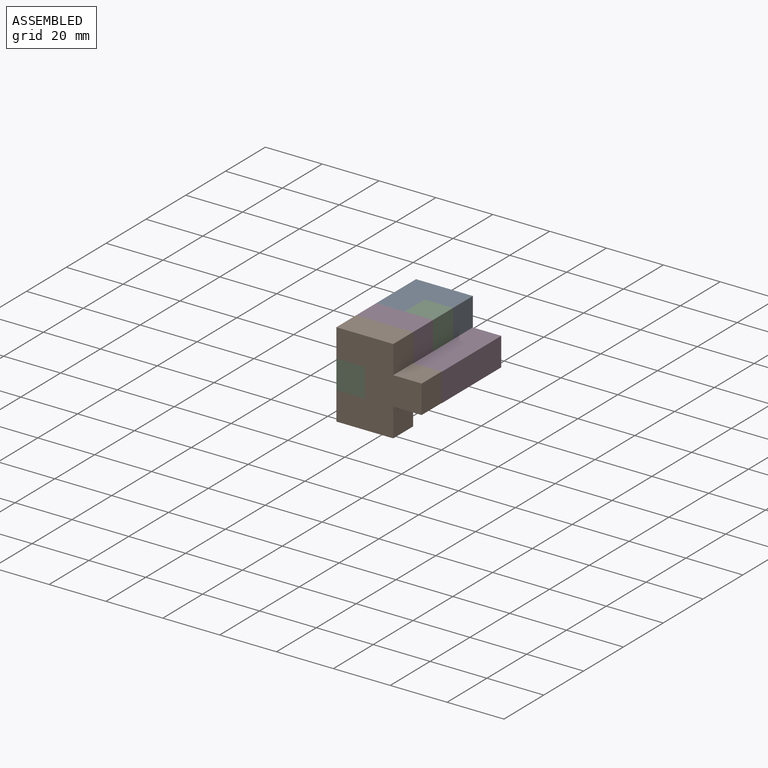
[diagram: assembled view]
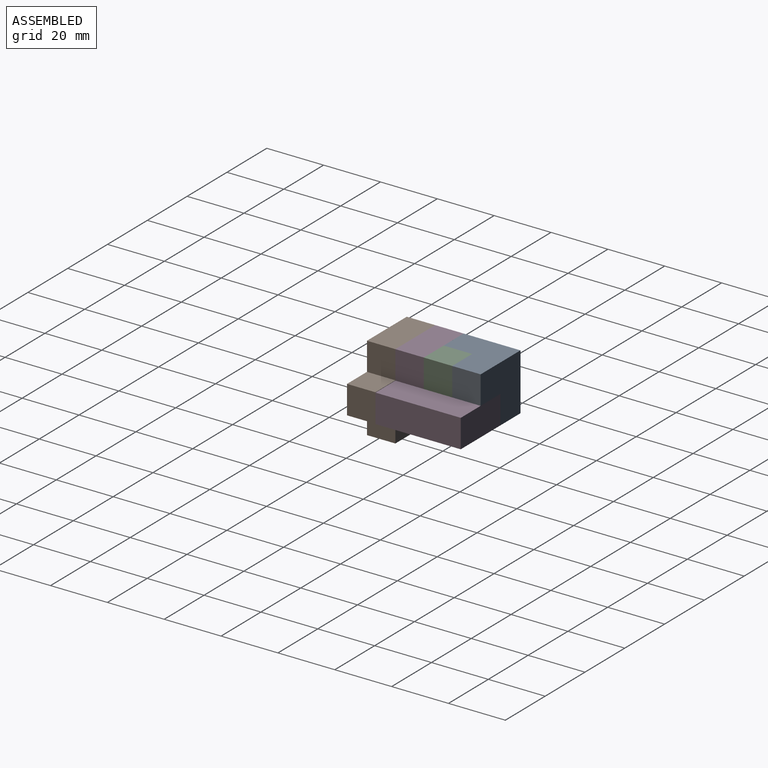
[diagram: assembled view, second angle]
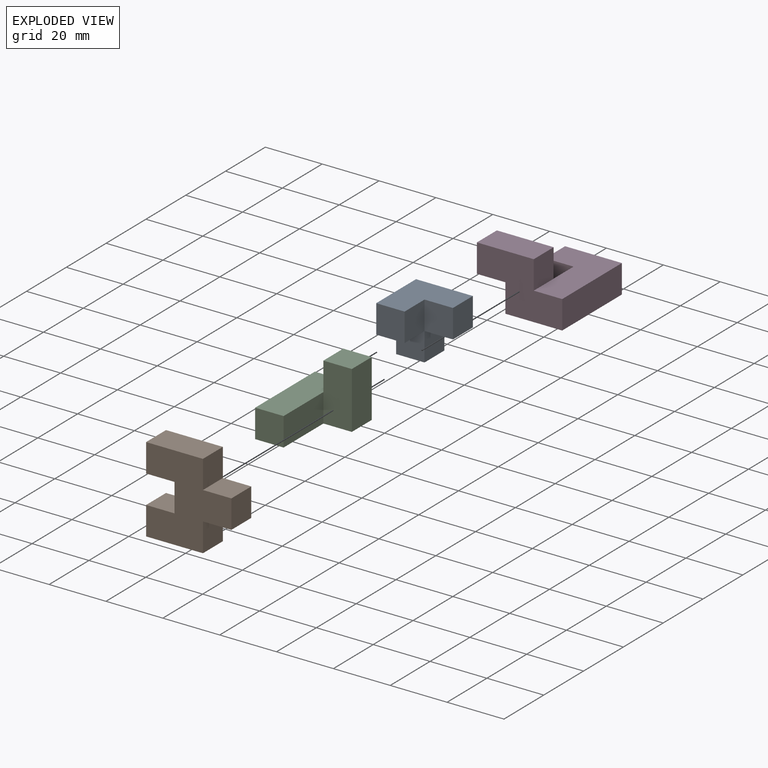
[diagram: exploded view]
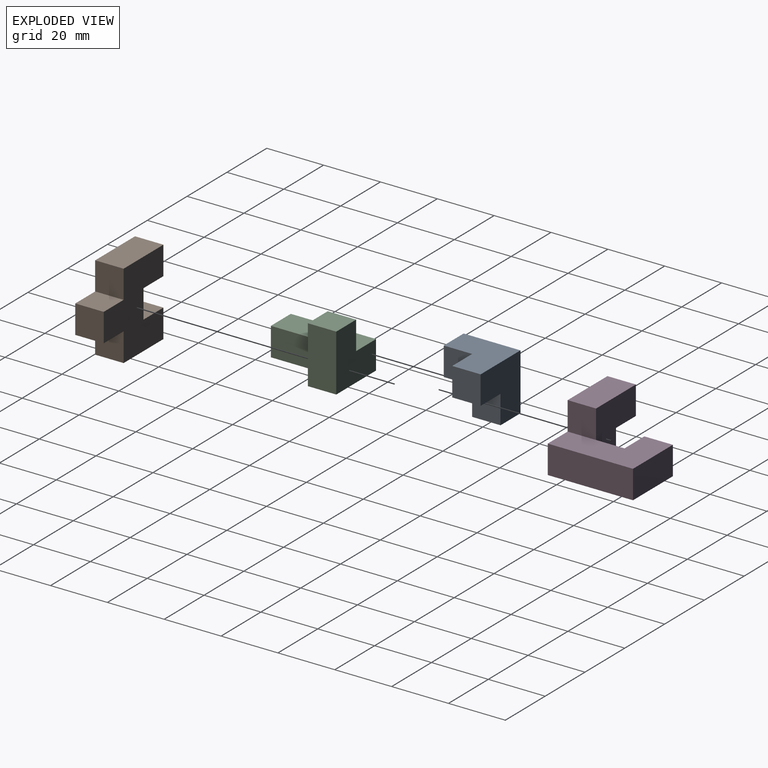
[diagram: exploded view, second angle]
ASSEMBLY  parts=4 mates=3
PART A: 12 faces, bbox 20x20x20 mm
  f0: plane 10x10mm, normal (0,0,-1), area 100mm2, adj f6,f7,f8,f9
  f1: plane 20x20mm, normal (0,0,1), area 300mm2, adj f2,f4,f5,f6,f7,f8
  f2: plane 20x20mm, normal (-1,0,0), area 300mm2, adj f1,f3,f5,f6,f10,f11
  f3: plane 10x10mm, normal (0,0,-1), area 100mm2, adj f2,f4,f5,f10
  f4: plane 10x10mm, normal (1,0,0), area 100mm2, adj f1,f3,f5,f7
  f5: plane 10x10mm, normal (0,-1,0), area 100mm2, adj f1,f2,f3,f4
  f6: plane 20x20mm, normal (0,1,0), area 300mm2, adj f0,f1,f2,f8,f9,f11
  f7: plane 10x10mm, normal (0,-1,0), area 100mm2, adj f0,f1,f4,f8
  f8: plane 10x10mm, normal (1,0,0), area 100mm2, adj f0,f1,f6,f7
  f9: plane 10x10mm, normal (1,0,0), area 100mm2, adj f0,f6,f10,f11
  f10: plane 10x10mm, normal (0,-1,0), area 100mm2, adj f2,f3,f9,f11
  f11: plane 10x10mm, normal (0,0,-1), area 100mm2, adj f2,f6,f9,f10
PART B: 14 faces, bbox 30x10x30 mm
  f0: plane 10.1x10mm, normal (1,0,0), area 101mm2, adj f3,f5,f8,f11
  f1: plane 10x9.9mm, normal (1,0,0), area 99mm2, adj f3,f4,f5,f12
  f2: plane 10x10mm, normal (-1,0,0), area 100mm2, adj f3,f5,f6,f9
  f3: plane 30x30mm, normal (0,1,0), area 600mm2, adj f0,f1,f2,f4,f6,f7,f8,f9
  f4: plane 20x10mm, normal (0,0,1), area 200mm2, adj f1,f3,f5,f7
  f5: plane 30x30mm, normal (0,-1,0), area 600mm2, adj f0,f1,f2,f4,f6,f7,f8,f9
  f6: plane 10x10mm, normal (0,0,-1), area 100mm2, adj f2,f3,f5,f7
  f7: plane 10x10mm, normal (-1,0,0), area 100mm2, adj f3,f4,f5,f6
  f8: plane 20x10mm, normal (0,0,-1), area 200mm2, adj f0,f3,f5,f10
  f9: plane 10x10mm, normal (0,0,1), area 100mm2, adj f2,f3,f5,f10
  f10: plane 10x10mm, normal (-1,0,0), area 100mm2, adj f3,f5,f8,f9
  f11: plane 10x10mm, normal (0,0,-1), area 100mm2, adj f0,f3,f5,f13
  f12: plane 10x10mm, normal (0,0,1), area 100mm2, adj f1,f3,f5,f13
  f13: plane 10x10mm, normal (1,0,0), area 100mm2, adj f3,f5,f11,f12
PART C: 57 faces, bbox 20x30x20 mm
  f0: plane 30x10mm, normal (-1,0,0), area 273.3mm2, adj f5,f6,f7,f9,f14,f15,f16,f17
  f1: plane 20x10mm, normal (0,-1,0), area 200mm2, adj f2,f3,f4,f6,f8
  f2: plane 10x10mm, normal (-1,0,0), area 100mm2, adj f1,f3,f5,f7
  f3: plane 10x10mm, normal (0,0,1), area 100mm2, adj f1,f2,f4,f5
  f4: plane 20x10mm, normal (1,0,0), area 200mm2, adj f1,f3,f5,f6
  f5: plane 20x20mm, normal (0,1,0), area 300mm2, adj f0,f2,f3,f4,f6,f7
  f6: plane 30x20mm, normal (0,0,-1), area 400mm2, adj f0,f1,f4,f5,f8,f9
  f7: plane 30x10mm, normal (0,0,1), area 300mm2, adj f0,f2,f5,f8,f9
  f8: plane 20x10mm, normal (1,0,0), area 200mm2, adj f1,f6,f7,f9
  f9: plane 10x10mm, normal (0,-1,0), area 100mm2, adj f0,f6,f7,f8
  f10: plane 1.61x1mm, normal (0,-0.94,0.35), area 1.7mm2, adj f11,f22,f23,f56
  f11: plane 1.68x1mm, normal (0,0,-1), area 1.7mm2, adj f10,f12,f23,f56
  f12: plane 1.61x1mm, normal (0,0.94,0.35), area 1.7mm2, adj f11,f13,f23,f56
  f13: extruded ~1x0.75mm, area 0.8mm2, adj f12,f22,f23,f56
  f14: plane 1.65x1mm, normal (0,-0.93,0.36), area 1.8mm2, adj f0,f15,f21,f23
  f15: plane 1x0.63mm, normal (0,0,1), area 0.6mm2, adj f0,f14,f16,f23
  f16: plane 5.22x2.04mm, normal (0,0.93,-0.36), area 5.6mm2, adj f0,f15,f17,f23
  f17: plane 1x0.51mm, normal (0,0,-1), area 0.5mm2, adj f0,f16,f18,f23
  f18: plane 5.22x2.05mm, normal (0,-0.93,-0.37), area 5.6mm2, adj f0,f17,f19,f23
  f19: plane 1x0.61mm, normal (0,0,1), area 0.6mm2, adj f0,f18,f20,f23
  f20: plane 1.65x1mm, normal (0,0.93,0.36), area 1.8mm2, adj f0,f19,f21,f23
  f21: plane 2.08x1mm, normal (0,0,1), area 2.1mm2, adj f0,f14,f20,f23
  f22: extruded ~1x0.75mm, area 0.8mm2, adj f10,f13,f23,f56
  f23: plane 5.22x4.61mm, normal (-1,0,0), area 6.9mm2, adj f10,f11,f12,f13,f14,f15,f16,f17
  f24: plane 1x0.69mm, normal (0,0,1), area 0.7mm2, adj f0,f25,f35,f36
  f25: plane 2.74x1.73mm, normal (0,0.84,-0.54), area 3.2mm2, adj f0,f24,f26,f36
  f26: plane 2.46x1.61mm, normal (0,0.84,0.55), area 2.9mm2, adj f0,f25,f27,f36
  f27: plane 1x0.64mm, normal (0,0,-1), area 0.6mm2, adj f0,f26,f28,f36
  f28: plane 2.06x1.3mm, normal (0,-0.85,-0.53), area 2.4mm2, adj f0,f27,f29,f36
  f29: plane 2.06x1.29mm, normal (0,0.85,-0.53), area 2.4mm2, adj f0,f28,f30,f36
  f30: plane 1x0.67mm, normal (0,0,-1), area 0.7mm2, adj f0,f29,f31,f36
  f31: plane 2.48x1.61mm, normal (0,-0.84,0.54), area 3mm2, adj f0,f30,f32,f36
  f32: plane 2.72x1.73mm, normal (0,-0.84,-0.54), area 3.2mm2, adj f0,f31,f33,f36
  f33: plane 1x0.64mm, normal (0,0,1), area 0.6mm2, adj f0,f32,f34,f36
  f34: plane 2.28x1.42mm, normal (0,0.85,0.53), area 2.7mm2, adj f0,f33,f35,f36
  f35: plane 2.28x1.4mm, normal (0,-0.85,0.52), area 2.7mm2, adj f0,f24,f34,f36
  f36: plane 5.2x4.14mm, normal (-1,0,0), area 6.4mm2, adj f24,f25,f26,f27,f28,f29,f30,f31
  f37: plane 4.61x1.76mm, normal (0,-0.93,0.36), area 4.9mm2, adj f0,f38,f54,f55
  f38: plane 1x0.49mm, normal (0,0,1), area 0.5mm2, adj f0,f37,f39,f55
  f39: plane 4.6x1.78mm, normal (0,0.93,0.36), area 4.9mm2, adj f0,f38,f40,f55
  f40: plane 1x0.03mm, normal (0,0,1), area 0mm2, adj f0,f39,f41,f55
  f41: extruded ~1.25x1mm, area 1.3mm2, adj f0,f40,f42,f55
  f42: plane 3.35x1mm, normal (0,-1,0), area 3.3mm2, adj f0,f41,f43,f55
  f43: plane 1x0.6mm, normal (0,0,1), area 0.6mm2, adj f0,f42,f44,f55
  f44: plane 5.2x1mm, normal (0,1,0), area 5.2mm2, adj f0,f43,f45,f55
  f45: plane 1x0.9mm, normal (0,0,-1), area 0.9mm2, adj f0,f44,f46,f55
  f46: plane 4.29x1.66mm, normal (0,-0.93,-0.36), area 4.6mm2, adj f0,f45,f47,f55
  f47: plane 1x0.03mm, normal (0,0,-1), area 0mm2, adj f0,f46,f48,f55
  f48: plane 4.29x1.65mm, normal (0,0.93,-0.36), area 4.6mm2, adj f0,f47,f49,f55
  f49: plane 1x0.91mm, normal (0,0,-1), area 0.9mm2, adj f0,f48,f50,f55
  f50: plane 5.2x1mm, normal (0,-1,0), area 5.2mm2, adj f0,f49,f51,f55
  f51: plane 1x0.56mm, normal (0,0,1), area 0.6mm2, adj f0,f50,f52,f55
  f52: plane 3.3x1mm, normal (0,1,0), area 3.3mm2, adj f0,f51,f53,f55
  f53: extruded ~1.3x1mm, area 1.3mm2, adj f0,f52,f54,f55
  f54: plane 1x0.03mm, normal (0,0,1), area 0mm2, adj f0,f37,f53,f55
  f55: plane 5.2x5.15mm, normal (-1,0,0), area 11.5mm2, adj f37,f38,f39,f40,f41,f42,f43,f44
  f56: plane 2.36x1.68mm, normal (-1,0,0), area 1.9mm2, adj f10,f11,f12,f13,f22
PART D: 14 faces, bbox 30x30x20 mm
  f0: plane 30x20mm, normal (0,0,1), area 400mm2, adj f1,f2,f3,f5,f6,f7,f10
  f1: plane 10x10mm, normal (-1,0,0), area 100mm2, adj f0,f3,f4,f8
  f2: plane 20x10mm, normal (0,1,0), area 200mm2, adj f0,f4,f5,f6
  f3: plane 10x10mm, normal (0,-1,0), area 100mm2, adj f0,f1,f4,f6
  f4: plane 30x20mm, normal (0,0,-1), area 500mm2, adj f1,f2,f3,f5,f6,f7,f8,f9
  f5: plane 30x10mm, normal (1,0,0), area 300mm2, adj f0,f2,f4,f7
  f6: plane 10x10mm, normal (-1,0,0), area 100mm2, adj f0,f2,f3,f4
  f7: plane 30x20mm, normal (0,-1,0), area 400mm2, adj f0,f4,f5,f9,f10,f11,f12,f13
  f8: plane 20x20mm, normal (0,1,0), area 300mm2, adj f1,f4,f9,f10,f11,f12,f13
  f9: plane 10x10mm, normal (-1,0,0), area 100mm2, adj f4,f7,f8,f12
  f10: plane 10x10mm, normal (1,0,0), area 100mm2, adj f0,f7,f8,f11
  f11: plane 20x10mm, normal (0,0,1), area 200mm2, adj f7,f8,f10,f13
  f12: plane 10x10mm, normal (0,0,-1), area 100mm2, adj f7,f8,f9,f13
  f13: plane 10x10mm, normal (-1,0,0), area 100mm2, adj f7,f8,f11,f12
PLACE A t=(-1.92,-3.08,-7.93)mm
PLACE B t=(-54.81,-67.39,-5.42)mm
PLACE C t=(-15.75,-13.08,3.44)mm
PLACE D t=(-44.81,-55.51,-19.95)mm
MATE fastened A.f7 <-> C.f5  axis (0,-1,0) through (-34.81,-13.08,29.34)mm
MATE fastened D.f7 <-> B.f3  axis (0,-1,0) through (-54.81,-33.08,29.34)mm
MATE fastened D.f8 <-> C.f1  axis (0,1,0) through (-34.81,-23.08,29.34)mm
